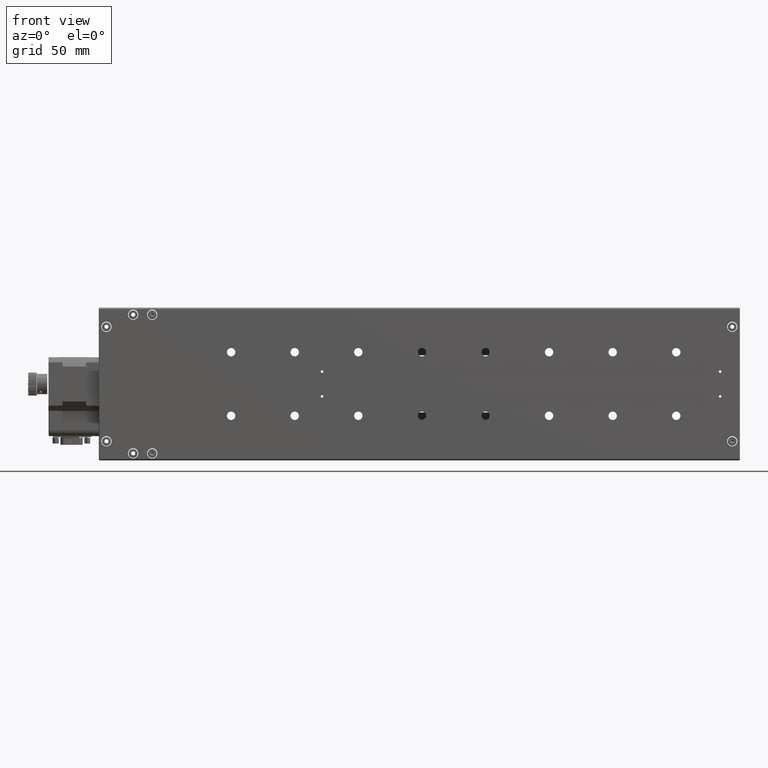
[diagram: clean part render]
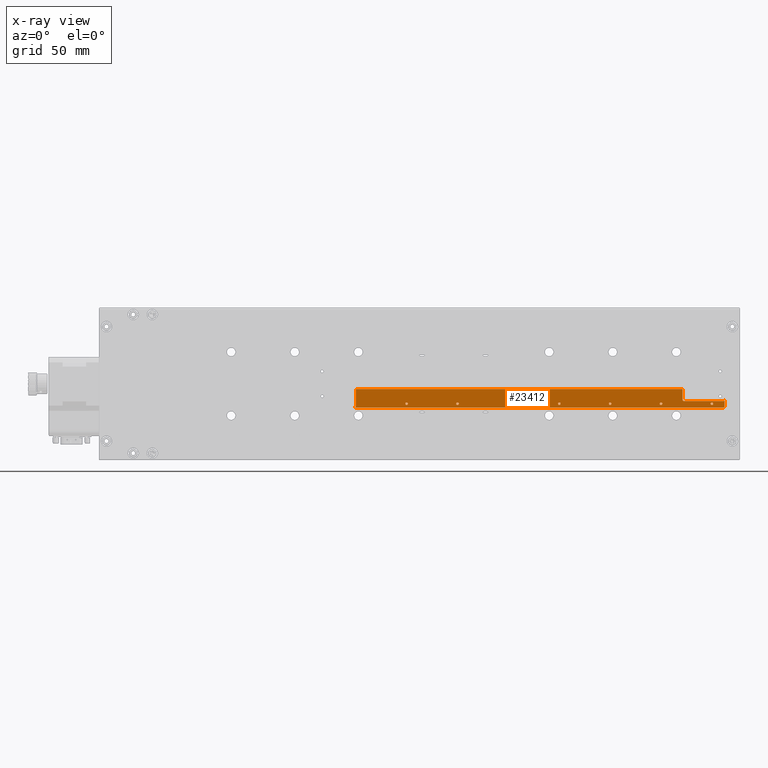
[diagram: x-ray — body ghosted, one internal face saturated and labeled with its STEP entity id]
A machine part, front view, then the same camera in x-ray: the body is ghosted and one INTERNAL B-rep face — a face not visible from any outside direction — is saturated and labeled: STEP entity #23412.
In plain terms, the highlighted planar face has unit normal (0, 1, -0).
Its self-contained STEP definition (entity closure, byte-faithful):
#1125 = EDGE_LOOP ( 'NONE', ( #10231, #44975 ) ) ;
#2070 = FACE_BOUND ( 'NONE', #10691, .T. ) ;
#3321 = CARTESIAN_POINT ( 'NONE',  ( -73.35355467723933000, 11.79999999999383300, 143.1675170193758500 ) ) ;
#3595 = ORIENTED_EDGE ( 'NONE', *, *, #36294, .F. ) ;
#3644 = AXIS2_PLACEMENT_3D ( 'NONE', #52483, #52141, #23041 ) ;
#3803 = ORIENTED_EDGE ( 'NONE', *, *, #47997, .F. ) ;
#3869 = VERTEX_POINT ( 'NONE', #9489 ) ;
#3888 = CARTESIAN_POINT ( 'NONE',  ( -124.3535546772395400, 11.79999999999389900, 124.6675170193764200 ) ) ;
#3921 = EDGE_CURVE ( 'NONE', #8267, #41532, #18245, .T. ) ;
#3974 = FACE_BOUND ( 'NONE', #41963, .T. ) ;
#4007 = LINE ( 'NONE', #21621, #30993 ) ;
#4051 = AXIS2_PLACEMENT_3D ( 'NONE', #40335, #15282, #49304 ) ;
#4129 = ORIENTED_EDGE ( 'NONE', *, *, #31322, .F. ) ;
#4404 = CIRCLE ( 'NONE', #43606, 1.000000000000000900 ) ;
#4547 = DIRECTION ( 'NONE',  ( 1.322943490866826100E-015, 1.000000000000000000, -1.554954513842066800E-016 ) ) ;
#4802 = AXIS2_PLACEMENT_3D ( 'NONE', #41710, #37743, #24286 ) ;
#4912 = ORIENTED_EDGE ( 'NONE', *, *, #3921, .T. ) ;
#4949 = EDGE_CURVE ( 'NONE', #51011, #25231, #20823, .T. ) ;
#5076 = AXIS2_PLACEMENT_3D ( 'NONE', #34506, #21886, #34694 ) ;
#5291 = CARTESIAN_POINT ( 'NONE',  ( -83.35355467723945800, 11.79999999999384400, 127.6675170193759200 ) ) ;
#5320 = AXIS2_PLACEMENT_3D ( 'NONE', #5291, #34671, #39053 ) ;
#5589 = CARTESIAN_POINT ( 'NONE',  ( -43.35355467723944400, 11.79999999999379100, 127.6675170193754800 ) ) ;
#6257 = VERTEX_POINT ( 'NONE', #52229 ) ;
#6732 = CIRCLE ( 'NONE', #26142, 1.000000000000000900 ) ;
#6751 = CIRCLE ( 'NONE', #13953, 1.000000000000000900 ) ;
#7182 = EDGE_LOOP ( 'NONE', ( #25942, #16886 ) ) ;
#7286 = CARTESIAN_POINT ( 'NONE',  ( 117.6464453227606400, 11.79999999999357700, 127.6675170193737000 ) ) ;
#7339 = ORIENTED_EDGE ( 'NONE', *, *, #4949, .F. ) ;
#7389 = DIRECTION ( 'NONE',  ( -1.110223024625156200E-014, -1.554954513841917700E-016, -1.000000000000000000 ) ) ;
#7890 = CARTESIAN_POINT ( 'NONE',  ( -3.353554677239425800, 11.79999999999373900, 127.6675170193750400 ) ) ;
#7976 = FACE_BOUND ( 'NONE', #1125, .T. ) ;
#8178 = ORIENTED_EDGE ( 'NONE', *, *, #45023, .T. ) ;
#8267 = VERTEX_POINT ( 'NONE', #39836 ) ;
#8426 = DIRECTION ( 'NONE',  ( -1.000000000000000000, 1.322943490866827700E-015, 1.110223024625156200E-014 ) ) ;
#8578 = CARTESIAN_POINT ( 'NONE',  ( 156.6464453227606600, 11.79999999999352800, 127.6675170193732600 ) ) ;
#8604 = CARTESIAN_POINT ( 'NONE',  ( 134.6464453227606300, 11.79999999999355600, 130.6675170193735500 ) ) ;
#8808 = CARTESIAN_POINT ( 'NONE',  ( 116.6464453227606400, 11.79999999999357900, 127.6675170193737000 ) ) ;
#8920 = DIRECTION ( 'NONE',  ( 1.322943490866826100E-015, 1.000000000000000000, -1.554954513842066800E-016 ) ) ;
#9489 = CARTESIAN_POINT ( 'NONE',  ( -82.35355467723945800, 11.79999999999384200, 127.6675170193759200 ) ) ;
#9753 = CIRCLE ( 'NONE', #27395, 0.9999999999999983300 ) ;
#9975 = FACE_OUTER_BOUND ( 'NONE', #14788, .T. ) ;
#10199 = DIRECTION ( 'NONE',  ( 1.322943490866826100E-015, 1.000000000000000000, -1.554954513842066800E-016 ) ) ;
#10231 = ORIENTED_EDGE ( 'NONE', *, *, #31166, .F. ) ;
#10248 = DIRECTION ( 'NONE',  ( -1.000000000000000000, 1.734723475976805500E-015, 0.0000000000000000000 ) ) ;
#10371 = DIRECTION ( 'NONE',  ( 1.322943490866826100E-015, 1.000000000000000000, -1.554954513842066800E-016 ) ) ;
#10383 = ORIENTED_EDGE ( 'NONE', *, *, #12278, .F. ) ;
#10691 = EDGE_LOOP ( 'NONE', ( #48737, #37736 ) ) ;
#10704 = VECTOR ( 'NONE', #29174, 1000.000000000000000 ) ;
#10901 = CARTESIAN_POINT ( 'NONE',  ( 166.6464453227606300, 11.79999999999351300, 129.6675170193732100 ) ) ;
#11195 = ORIENTED_EDGE ( 'NONE', *, *, #50275, .F. ) ;
#11842 = EDGE_CURVE ( 'NONE', #22988, #50118, #53377, .T. ) ;
#12185 = CIRCLE ( 'NONE', #39317, 1.000000000000000900 ) ;
#12278 = EDGE_CURVE ( 'NONE', #47588, #50118, #35653, .T. ) ;
#12627 = CARTESIAN_POINT ( 'NONE',  ( 157.6464453227606600, 11.79999999999352600, 127.6675170193732600 ) ) ;
#12719 = CARTESIAN_POINT ( 'NONE',  ( -3.353554677239425800, 11.79999999999373900, 127.6675170193750400 ) ) ;
#12852 = DIRECTION ( 'NONE',  ( 1.322943490866826100E-015, 1.000000000000000000, -1.554954513842066800E-016 ) ) ;
#12971 = AXIS2_PLACEMENT_3D ( 'NONE', #48455, #14980, #23415 ) ;
#12979 = DIRECTION ( 'NONE',  ( -1.110223024625156200E-014, -1.554954513841917700E-016, -1.000000000000000000 ) ) ;
#13198 = CARTESIAN_POINT ( 'NONE',  ( -123.3535546772393600, 11.79999999999389900, 139.1675170193764500 ) ) ;
#13953 = AXIS2_PLACEMENT_3D ( 'NONE', #5589, #10199, #35141 ) ;
#14010 = EDGE_LOOP ( 'NONE', ( #27376, #4129 ) ) ;
#14788 = EDGE_LOOP ( 'NONE', ( #26972, #37034, #32106, #8178, #16758, #10383, #48871, #47871, #41720, #4912 ) ) ;
#14901 = VERTEX_POINT ( 'NONE', #52869 ) ;
#14980 = DIRECTION ( 'NONE',  ( -1.322943490866826100E-015, -1.000000000000000000, 1.554954513842066800E-016 ) ) ;
#15140 = DIRECTION ( 'NONE',  ( 1.000000000000000000, -1.322943490866827700E-015, -1.110223024625156200E-014 ) ) ;
#15282 = DIRECTION ( 'NONE',  ( 1.322943490866826100E-015, 1.000000000000000000, -1.554954513842066800E-016 ) ) ;
#15547 = VECTOR ( 'NONE', #7389, 1000.000000000000000 ) ;
#15854 = PLANE ( 'NONE',  #49596 ) ;
#16553 = EDGE_CURVE ( 'NONE', #39291, #47010, #42434, .T. ) ;
#16758 = ORIENTED_EDGE ( 'NONE', *, *, #11842, .T. ) ;
#16886 = ORIENTED_EDGE ( 'NONE', *, *, #34953, .F. ) ;
#18245 = CIRCLE ( 'NONE', #12971, 1.000000000000000900 ) ;
#18708 = CARTESIAN_POINT ( 'NONE',  ( 134.6464453227606300, 11.79999999999355600, 129.6675170193735500 ) ) ;
#19454 = CIRCLE ( 'NONE', #47221, 1.000000000000000900 ) ;
#19618 = VERTEX_POINT ( 'NONE', #3888 ) ;
#19949 = VECTOR ( 'NONE', #25402, 1000.000000000000000 ) ;
#20127 = ORIENTED_EDGE ( 'NONE', *, *, #21884, .F. ) ;
#20622 = DIRECTION ( 'NONE',  ( 1.322943490866826100E-015, 1.000000000000000000, -1.554954513842066800E-016 ) ) ;
#20823 = CIRCLE ( 'NONE', #4051, 1.000000000000000900 ) ;
#21083 = CIRCLE ( 'NONE', #21412, 0.9999999999999983300 ) ;
#21274 = CIRCLE ( 'NONE', #5076, 1.000000000000000900 ) ;
#21412 = AXIS2_PLACEMENT_3D ( 'NONE', #7890, #24756, #49646 ) ;
#21546 = CARTESIAN_POINT ( 'NONE',  ( -44.35355467723945100, 11.79999999999379200, 127.6675170193754800 ) ) ;
#21621 = CARTESIAN_POINT ( 'NONE',  ( 166.6464453227609700, 11.79999999999351900, 161.6675170193732100 ) ) ;
#21667 = CARTESIAN_POINT ( 'NONE',  ( -42.35355467723944400, 11.79999999999378900, 127.6675170193754800 ) ) ;
#21797 = CARTESIAN_POINT ( 'NONE',  ( 165.6464453227605700, 11.79999999999351300, 125.6675170193732100 ) ) ;
#21839 = LINE ( 'NONE', #50563, #26376 ) ;
#21884 = EDGE_CURVE ( 'NONE', #25231, #51011, #37660, .T. ) ;
#21886 = DIRECTION ( 'NONE',  ( 1.322943490866826100E-015, 1.000000000000000000, -1.554954513842066800E-016 ) ) ;
#22077 = AXIS2_PLACEMENT_3D ( 'NONE', #8604, #50372, #46138 ) ;
#22534 = EDGE_CURVE ( 'NONE', #6257, #28146, #34335, .T. ) ;
#22880 = CARTESIAN_POINT ( 'NONE',  ( -83.35355467723945800, 11.79999999999384400, 127.6675170193759200 ) ) ;
#22988 = VERTEX_POINT ( 'NONE', #26346 ) ;
#23041 = DIRECTION ( 'NONE',  ( 1.000000000000000000, -1.734723475976805500E-015, 0.0000000000000000000 ) ) ;
#23412 = ADVANCED_FACE ( 'NONE', ( #28955, #48019, #3974, #2070, #47320, #7976, #27648, #9975 ), #15854, .T. ) ;
#23415 = DIRECTION ( 'NONE',  ( -1.000000000000000000, 1.734723475976805500E-015, 0.0000000000000000000 ) ) ;
#24058 = EDGE_CURVE ( 'NONE', #32916, #19618, #21839, .T. ) ;
#24178 = VERTEX_POINT ( 'NONE', #29262 ) ;
#24286 = DIRECTION ( 'NONE',  ( -1.000000000000000000, 1.734723475976805500E-015, 0.0000000000000000000 ) ) ;
#24618 = CARTESIAN_POINT ( 'NONE',  ( 77.64644532276059900, 11.79999999999363100, 127.6675170193741500 ) ) ;
#24721 = DIRECTION ( 'NONE',  ( 1.322943490866826100E-015, 1.000000000000000000, -1.554954513842066800E-016 ) ) ;
#24756 = DIRECTION ( 'NONE',  ( 1.322943490866826100E-015, 1.000000000000000000, -1.554954513842066800E-016 ) ) ;
#25022 = EDGE_CURVE ( 'NONE', #28146, #8267, #51624, .T. ) ;
#25103 = EDGE_CURVE ( 'NONE', #47588, #6257, #52913, .T. ) ;
#25231 = VERTEX_POINT ( 'NONE', #24618 ) ;
#25402 = DIRECTION ( 'NONE',  ( 1.110223024625156200E-014, 1.554954513841917700E-016, 1.000000000000000000 ) ) ;
#25519 = EDGE_CURVE ( 'NONE', #42585, #37219, #19454, .T. ) ;
#25793 = DIRECTION ( 'NONE',  ( -1.000000000000000000, 1.734723475976829600E-015, 0.0000000000000000000 ) ) ;
#25942 = ORIENTED_EDGE ( 'NONE', *, *, #25519, .F. ) ;
#26142 = AXIS2_PLACEMENT_3D ( 'NONE', #21797, #8920, #38437 ) ;
#26335 = EDGE_CURVE ( 'NONE', #47010, #39291, #37068, .T. ) ;
#26346 = CARTESIAN_POINT ( 'NONE',  ( -123.3535546772395000, 11.79999999999389500, 125.6675170193764200 ) ) ;
#26376 = VECTOR ( 'NONE', #8426, 1000.000000000000000 ) ;
#26966 = CARTESIAN_POINT ( 'NONE',  ( -2.353554677239427600, 11.79999999999373700, 127.6675170193750400 ) ) ;
#26972 = ORIENTED_EDGE ( 'NONE', *, *, #28537, .T. ) ;
#27096 = DIRECTION ( 'NONE',  ( 1.322943490866826100E-015, 1.000000000000000000, -1.554954513842066800E-016 ) ) ;
#27376 = ORIENTED_EDGE ( 'NONE', *, *, #47171, .F. ) ;
#27395 = AXIS2_PLACEMENT_3D ( 'NONE', #12719, #20622, #37651 ) ;
#27648 = FACE_BOUND ( 'NONE', #7182, .T. ) ;
#27898 = EDGE_CURVE ( 'NONE', #31302, #41727, #42878, .T. ) ;
#28146 = VERTEX_POINT ( 'NONE', #18708 ) ;
#28537 = EDGE_CURVE ( 'NONE', #41532, #41910, #4007, .T. ) ;
#28955 = FACE_BOUND ( 'NONE', #52014, .T. ) ;
#29110 = CIRCLE ( 'NONE', #53729, 1.000000000000000900 ) ;
#29174 = DIRECTION ( 'NONE',  ( -1.000000000000000000, 1.322943490866827700E-015, 1.137222611799892500E-014 ) ) ;
#29262 = CARTESIAN_POINT ( 'NONE',  ( 35.64644532276059200, 11.79999999999368800, 127.6675170193746000 ) ) ;
#29433 = ORIENTED_EDGE ( 'NONE', *, *, #27898, .F. ) ;
#29879 = DIRECTION ( 'NONE',  ( 1.000000000000000000, -1.734723475976805500E-015, 0.0000000000000000000 ) ) ;
#29891 = AXIS2_PLACEMENT_3D ( 'NONE', #8808, #12852, #29879 ) ;
#30002 = CARTESIAN_POINT ( 'NONE',  ( -124.3535546772395300, 11.79999999999389900, 125.6675170193764200 ) ) ;
#30993 = VECTOR ( 'NONE', #12979, 1000.000000000000000 ) ;
#31166 = EDGE_CURVE ( 'NONE', #32661, #31517, #9753, .T. ) ;
#31279 = VECTOR ( 'NONE', #15140, 1000.000000000000000 ) ;
#31302 = VERTEX_POINT ( 'NONE', #21546 ) ;
#31322 = EDGE_CURVE ( 'NONE', #14901, #24178, #4404, .T. ) ;
#31442 = CARTESIAN_POINT ( 'NONE',  ( 76.64644532276059900, 11.79999999999363100, 127.6675170193741500 ) ) ;
#31517 = VERTEX_POINT ( 'NONE', #26966 ) ;
#31920 = CARTESIAN_POINT ( 'NONE',  ( 165.6464453227605700, 11.79999999999351300, 124.6675170193732100 ) ) ;
#32106 = ORIENTED_EDGE ( 'NONE', *, *, #24058, .T. ) ;
#32661 = VERTEX_POINT ( 'NONE', #33981 ) ;
#32847 = AXIS2_PLACEMENT_3D ( 'NONE', #30002, #50881, #25793 ) ;
#32916 = VERTEX_POINT ( 'NONE', #31920 ) ;
#33887 = EDGE_CURVE ( 'NONE', #41910, #32916, #6732, .T. ) ;
#33974 = CARTESIAN_POINT ( 'NONE',  ( 133.6464453227607100, 11.79999999999355800, 139.1675170193735200 ) ) ;
#33981 = CARTESIAN_POINT ( 'NONE',  ( -4.353554677239424500, 11.79999999999374100, 127.6675170193750400 ) ) ;
#34335 = CIRCLE ( 'NONE', #22077, 1.000000000000000900 ) ;
#34506 = CARTESIAN_POINT ( 'NONE',  ( 156.6464453227606600, 11.79999999999352800, 127.6675170193732600 ) ) ;
#34507 = EDGE_LOOP ( 'NONE', ( #3803, #11195 ) ) ;
#34671 = DIRECTION ( 'NONE',  ( 1.322943490866826100E-015, 1.000000000000000000, -1.554954513842066800E-016 ) ) ;
#34694 = DIRECTION ( 'NONE',  ( 1.000000000000000000, -1.734723475976805500E-015, 0.0000000000000000000 ) ) ;
#34807 = CARTESIAN_POINT ( 'NONE',  ( -84.35355467723945800, 11.79999999999384600, 127.6675170193759200 ) ) ;
#34953 = EDGE_CURVE ( 'NONE', #37219, #42585, #21274, .T. ) ;
#35141 = DIRECTION ( 'NONE',  ( -1.000000000000000000, 1.734723475976805500E-015, 0.0000000000000000000 ) ) ;
#35653 = LINE ( 'NONE', #33974, #10704 ) ;
#36294 = EDGE_CURVE ( 'NONE', #41727, #31302, #6751, .T. ) ;
#36946 = DIRECTION ( 'NONE',  ( 1.322943490866825700E-015, 1.000000000000000000, -1.554954513842066600E-016 ) ) ;
#37034 = ORIENTED_EDGE ( 'NONE', *, *, #33887, .T. ) ;
#37068 = CIRCLE ( 'NONE', #3644, 1.000000000000000900 ) ;
#37219 = VERTEX_POINT ( 'NONE', #12627 ) ;
#37651 = DIRECTION ( 'NONE',  ( -1.000000000000000000, 1.734723475976810100E-015, 0.0000000000000000000 ) ) ;
#37660 = CIRCLE ( 'NONE', #52522, 1.000000000000000900 ) ;
#37736 = ORIENTED_EDGE ( 'NONE', *, *, #16553, .F. ) ;
#37743 = DIRECTION ( 'NONE',  ( 1.322943490866826100E-015, 1.000000000000000000, -1.554954513842066800E-016 ) ) ;
#37778 = CARTESIAN_POINT ( 'NONE',  ( 166.6464453227606300, 11.79999999999351300, 130.6675170193731800 ) ) ;
#37941 = DIRECTION ( 'NONE',  ( 1.000000000000000000, -1.734723475976805500E-015, 0.0000000000000000000 ) ) ;
#38437 = DIRECTION ( 'NONE',  ( -1.000000000000000000, 1.734723475976805500E-015, 0.0000000000000000000 ) ) ;
#39053 = DIRECTION ( 'NONE',  ( -1.000000000000000000, 1.734723475976805500E-015, 0.0000000000000000000 ) ) ;
#39291 = VERTEX_POINT ( 'NONE', #48834 ) ;
#39317 = AXIS2_PLACEMENT_3D ( 'NONE', #47780, #27096, #10248 ) ;
#39512 = DIRECTION ( 'NONE',  ( -1.000000000000000000, 1.734723475976805500E-015, 0.0000000000000000000 ) ) ;
#39836 = CARTESIAN_POINT ( 'NONE',  ( 165.6464453227606300, 11.79999999999351300, 129.6675170193732100 ) ) ;
#39870 = DIRECTION ( 'NONE',  ( 1.000000000000000000, -1.734723475976805500E-015, 0.0000000000000000000 ) ) ;
#40335 = CARTESIAN_POINT ( 'NONE',  ( 76.64644532276059900, 11.79999999999363100, 127.6675170193741500 ) ) ;
#41532 = VERTEX_POINT ( 'NONE', #37778 ) ;
#41710 = CARTESIAN_POINT ( 'NONE',  ( -43.35355467723944400, 11.79999999999379100, 127.6675170193754800 ) ) ;
#41720 = ORIENTED_EDGE ( 'NONE', *, *, #25022, .T. ) ;
#41727 = VERTEX_POINT ( 'NONE', #21667 ) ;
#41910 = VERTEX_POINT ( 'NONE', #51680 ) ;
#41963 = EDGE_LOOP ( 'NONE', ( #20127, #7339 ) ) ;
#42434 = CIRCLE ( 'NONE', #29891, 1.000000000000000900 ) ;
#42585 = VERTEX_POINT ( 'NONE', #48211 ) ;
#42878 = CIRCLE ( 'NONE', #4802, 1.000000000000000900 ) ;
#43606 = AXIS2_PLACEMENT_3D ( 'NONE', #50759, #4547, #46153 ) ;
#44301 = CIRCLE ( 'NONE', #5320, 1.000000000000000900 ) ;
#44975 = ORIENTED_EDGE ( 'NONE', *, *, #53047, .F. ) ;
#45023 = EDGE_CURVE ( 'NONE', #19618, #22988, #48166, .T. ) ;
#45111 = VERTEX_POINT ( 'NONE', #34807 ) ;
#45476 = DIRECTION ( 'NONE',  ( -1.000000000000000000, 1.322943490866827500E-015, 1.110223024625156200E-014 ) ) ;
#46138 = DIRECTION ( 'NONE',  ( -1.000000000000000000, 1.734723475976805500E-015, 2.775557561562888800E-014 ) ) ;
#46153 = DIRECTION ( 'NONE',  ( -1.000000000000000000, 1.734723475976805500E-015, 0.0000000000000000000 ) ) ;
#47010 = VERTEX_POINT ( 'NONE', #7286 ) ;
#47171 = EDGE_CURVE ( 'NONE', #24178, #14901, #12185, .T. ) ;
#47221 = AXIS2_PLACEMENT_3D ( 'NONE', #8578, #24721, #37941 ) ;
#47320 = FACE_BOUND ( 'NONE', #14010, .T. ) ;
#47588 = VERTEX_POINT ( 'NONE', #50837 ) ;
#47780 = CARTESIAN_POINT ( 'NONE',  ( 36.64644532276059900, 11.79999999999368600, 127.6675170193746000 ) ) ;
#47871 = ORIENTED_EDGE ( 'NONE', *, *, #22534, .T. ) ;
#47997 = EDGE_CURVE ( 'NONE', #45111, #3869, #29110, .T. ) ;
#48019 = FACE_BOUND ( 'NONE', #34507, .T. ) ;
#48166 = CIRCLE ( 'NONE', #32847, 0.9999999999999870100 ) ;
#48211 = CARTESIAN_POINT ( 'NONE',  ( 155.6464453227606600, 11.79999999999352900, 127.6675170193732600 ) ) ;
#48438 = DIRECTION ( 'NONE',  ( 1.322943490866826100E-015, 1.000000000000000000, -1.554954513842066800E-016 ) ) ;
#48455 = CARTESIAN_POINT ( 'NONE',  ( 165.6464453227606300, 11.79999999999351300, 130.6675170193732100 ) ) ;
#48623 = CARTESIAN_POINT ( 'NONE',  ( 133.6464453227606300, 11.79999999999355600, 129.6675170193735800 ) ) ;
#48737 = ORIENTED_EDGE ( 'NONE', *, *, #26335, .F. ) ;
#48834 = CARTESIAN_POINT ( 'NONE',  ( 115.6464453227606400, 11.79999999999358100, 127.6675170193737000 ) ) ;
#48871 = ORIENTED_EDGE ( 'NONE', *, *, #25103, .T. ) ;
#49304 = DIRECTION ( 'NONE',  ( 1.000000000000000000, -1.734723475976805500E-015, 0.0000000000000000000 ) ) ;
#49596 = AXIS2_PLACEMENT_3D ( 'NONE', #3321, #36946, #45476 ) ;
#49646 = DIRECTION ( 'NONE',  ( -1.000000000000000000, 1.734723475976810100E-015, 0.0000000000000000000 ) ) ;
#50118 = VERTEX_POINT ( 'NONE', #13198 ) ;
#50275 = EDGE_CURVE ( 'NONE', #3869, #45111, #44301, .T. ) ;
#50372 = DIRECTION ( 'NONE',  ( -1.322943490866826100E-015, -1.000000000000000000, 1.554954513842066800E-016 ) ) ;
#50477 = CARTESIAN_POINT ( 'NONE',  ( -123.3535546772394600, 11.79999999999389700, 129.6675170193764200 ) ) ;
#50563 = CARTESIAN_POINT ( 'NONE',  ( 166.6464453227605700, 11.79999999999351300, 124.6675170193732100 ) ) ;
#50759 = CARTESIAN_POINT ( 'NONE',  ( 36.64644532276059900, 11.79999999999368600, 127.6675170193746000 ) ) ;
#50837 = CARTESIAN_POINT ( 'NONE',  ( 133.6464453227607100, 11.79999999999355800, 139.1675170193735500 ) ) ;
#50881 = DIRECTION ( 'NONE',  ( -1.322943490866826100E-015, -1.000000000000000000, 1.554954513842066800E-016 ) ) ;
#51011 = VERTEX_POINT ( 'NONE', #53943 ) ;
#51624 = LINE ( 'NONE', #10901, #31279 ) ;
#51680 = CARTESIAN_POINT ( 'NONE',  ( 166.6464453227605700, 11.79999999999351300, 125.6675170193732100 ) ) ;
#52014 = EDGE_LOOP ( 'NONE', ( #29433, #3595 ) ) ;
#52141 = DIRECTION ( 'NONE',  ( 1.322943490866826100E-015, 1.000000000000000000, -1.554954513842066800E-016 ) ) ;
#52229 = CARTESIAN_POINT ( 'NONE',  ( 133.6464453227606300, 11.79999999999355600, 130.6675170193735800 ) ) ;
#52483 = CARTESIAN_POINT ( 'NONE',  ( 116.6464453227606400, 11.79999999999357900, 127.6675170193737000 ) ) ;
#52522 = AXIS2_PLACEMENT_3D ( 'NONE', #31442, #48438, #39870 ) ;
#52869 = CARTESIAN_POINT ( 'NONE',  ( 37.64644532276059900, 11.79999999999368400, 127.6675170193746000 ) ) ;
#52913 = LINE ( 'NONE', #48623, #15547 ) ;
#53047 = EDGE_CURVE ( 'NONE', #31517, #32661, #21083, .T. ) ;
#53377 = LINE ( 'NONE', #50477, #19949 ) ;
#53729 = AXIS2_PLACEMENT_3D ( 'NONE', #22880, #10371, #39512 ) ;
#53943 = CARTESIAN_POINT ( 'NONE',  ( 75.64644532276059900, 11.79999999999363200, 127.6675170193741500 ) ) ;